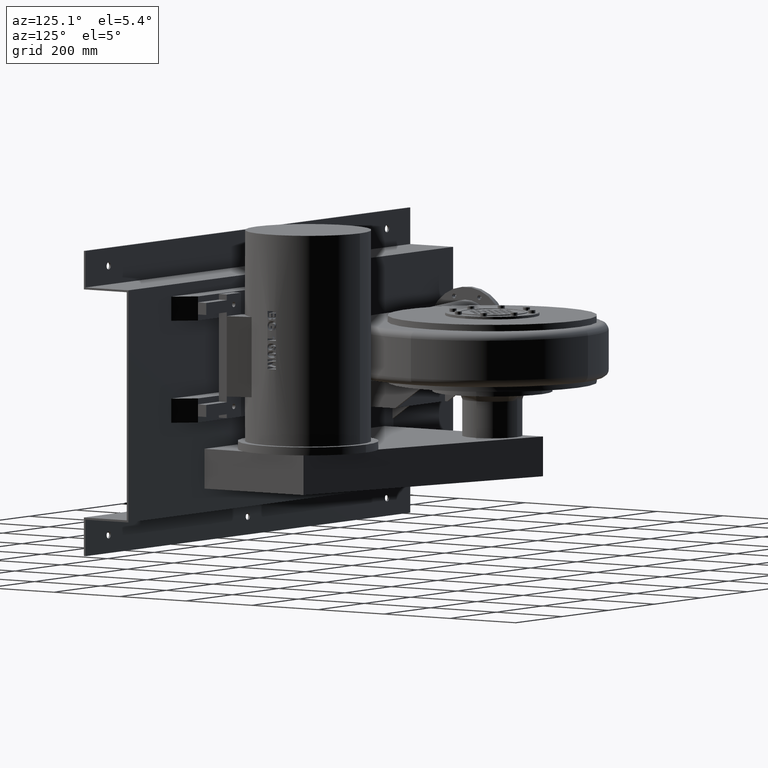
[diagram: clean part render]
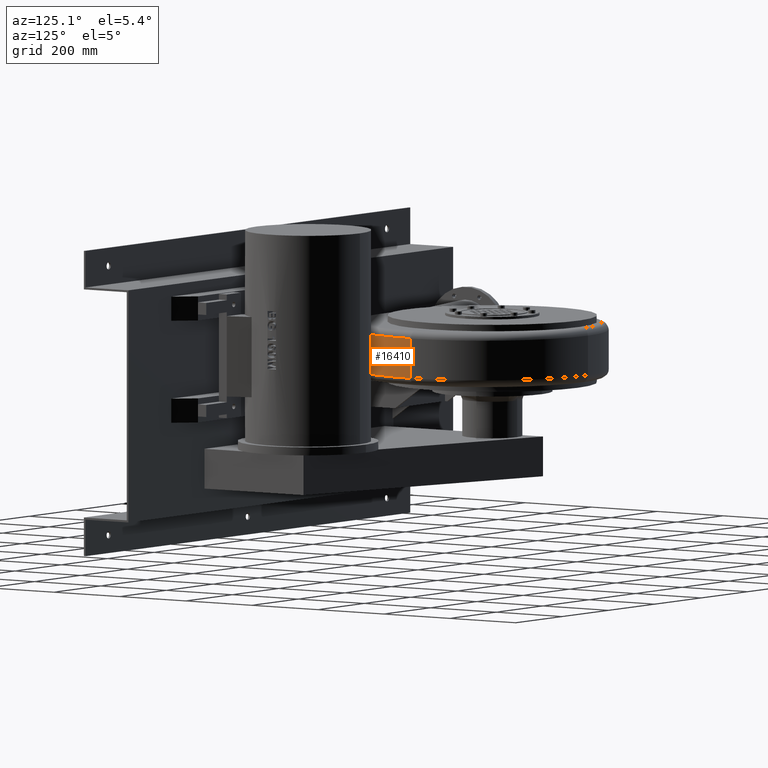
[diagram: same view with one face highlighted and labeled with its STEP entity id]
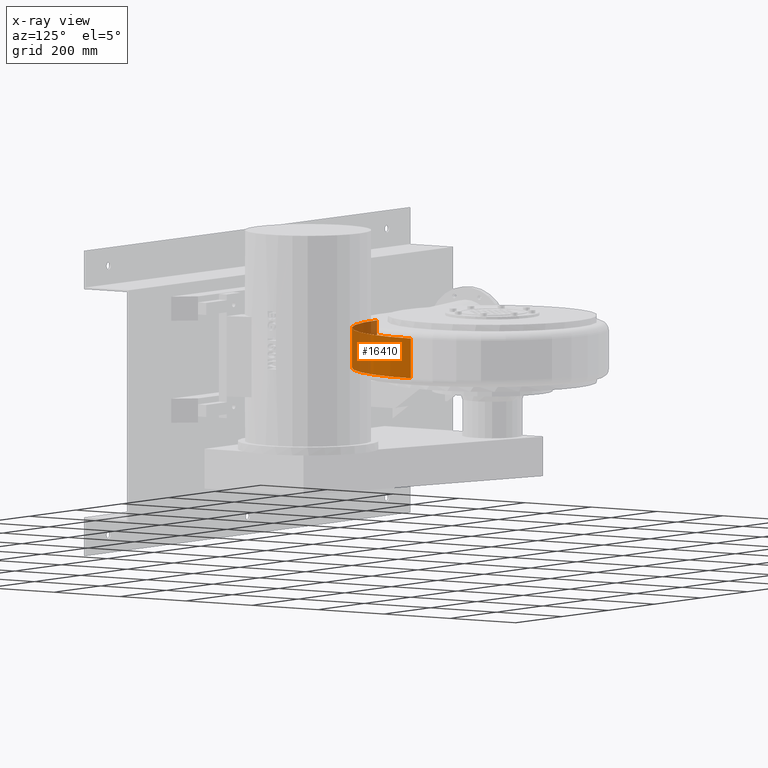
[diagram: x-ray of the same camera — body ghosted, the highlighted face saturated]
A machine part, auxiliary view. The second image highlights one B-rep face of the part: STEP entity #16410.
The next image is the same camera in x-ray: the body ghosted, the highlighted face saturated — about 38% of this face is hidden behind the body in this view.
In plain terms, the highlighted cylindrical surface (partial cylindrical patch) has radius 345 mm, axis along (-0, 0, 1).
Its self-contained STEP definition (entity closure, byte-faithful):
#16140=CARTESIAN_POINT('',(9.553962E-014,-345.000000000000110,49.500000000000043));
#16141=VERTEX_POINT('',#16140);
#16149=CARTESIAN_POINT('',(345.000000000000060,-1.326050E-013,49.499999999999964));
#16150=VERTEX_POINT('',#16149);
#16151=CARTESIAN_POINT('',(5.329071E-014,-1.326050E-013,49.499999999999964));
#16152=DIRECTION('',(-1.184238E-016,1.184238E-016,1.0));
#16153=DIRECTION('',(0.707106781186548,-0.707106781186547,1.674765E-016));
#16154=AXIS2_PLACEMENT_3D('',#16151,#16152,#16153);
#16155=CIRCLE('',#16154,345.0);
#16156=EDGE_CURVE('',#16141,#16150,#16155,.T.);
#16358=CARTESIAN_POINT('',(345.000000000000060,-1.560529E-013,-49.500000000000036));
#16359=VERTEX_POINT('',#16358);
#16369=CARTESIAN_POINT('',(345.000000000000060,-1.326050E-013,49.499999999999964));
#16370=DIRECTION('',(0.0,0.0,-1.0));
#16371=VECTOR('',#16370,99.0);
#16372=LINE('',#16369,#16371);
#16373=EDGE_CURVE('',#16150,#16359,#16372,.T.);
#16378=CARTESIAN_POINT('',(5.329071E-014,-1.443290E-013,-3.187976E-014));
#16379=DIRECTION('',(-6.833984E-031,2.368476E-016,1.0));
#16380=DIRECTION('',(0.0,-1.0,0.0));
#16381=AXIS2_PLACEMENT_3D('',#16378,#16379,#16380);
#16382=CYLINDRICAL_SURFACE('',#16381,345.0);
#16383=CARTESIAN_POINT('',(9.553962E-014,-345.000000000000110,-49.499999999999957));
#16384=VERTEX_POINT('',#16383);
#16385=CARTESIAN_POINT('',(5.329071E-014,-1.560529E-013,-49.500000000000036));
#16386=DIRECTION('',(1.184238E-016,-1.184238E-016,-1.0));
#16387=DIRECTION('',(0.707106781186548,-0.707106781186547,1.674765E-016));
#16388=AXIS2_PLACEMENT_3D('',#16385,#16386,#16387);
#16389=CIRCLE('',#16388,345.0);
#16390=EDGE_CURVE('',#16359,#16384,#16389,.T.);
#16391=ORIENTED_EDGE('',*,*,#16390,.F.);
#16392=ORIENTED_EDGE('',*,*,#16373,.F.);
#16393=ORIENTED_EDGE('',*,*,#16156,.F.);
#16394=CARTESIAN_POINT('',(9.553962E-014,-345.000000000000110,5.871444E-014));
#16395=VERTEX_POINT('',#16394);
#16396=CARTESIAN_POINT('',(9.553962E-014,-345.000000000000110,4.983265E-014));
#16397=DIRECTION('',(0.0,0.0,1.0));
#16398=VECTOR('',#16397,49.499999999999993);
#16399=LINE('',#16396,#16398);
#16400=EDGE_CURVE('',#16395,#16141,#16399,.T.);
#16401=ORIENTED_EDGE('',*,*,#16400,.F.);
#16402=CARTESIAN_POINT('',(9.553962E-014,-345.000000000000110,-49.499999999999964));
#16403=DIRECTION('',(0.0,0.0,1.0));
#16404=VECTOR('',#16403,49.500000000000014);
#16405=LINE('',#16402,#16404);
#16406=EDGE_CURVE('',#16384,#16395,#16405,.T.);
#16407=ORIENTED_EDGE('',*,*,#16406,.F.);
#16408=EDGE_LOOP('',(#16391,#16392,#16393,#16401,#16407));
#16409=FACE_OUTER_BOUND('',#16408,.T.);
#16410=ADVANCED_FACE('',(#16409),#16382,.T.);